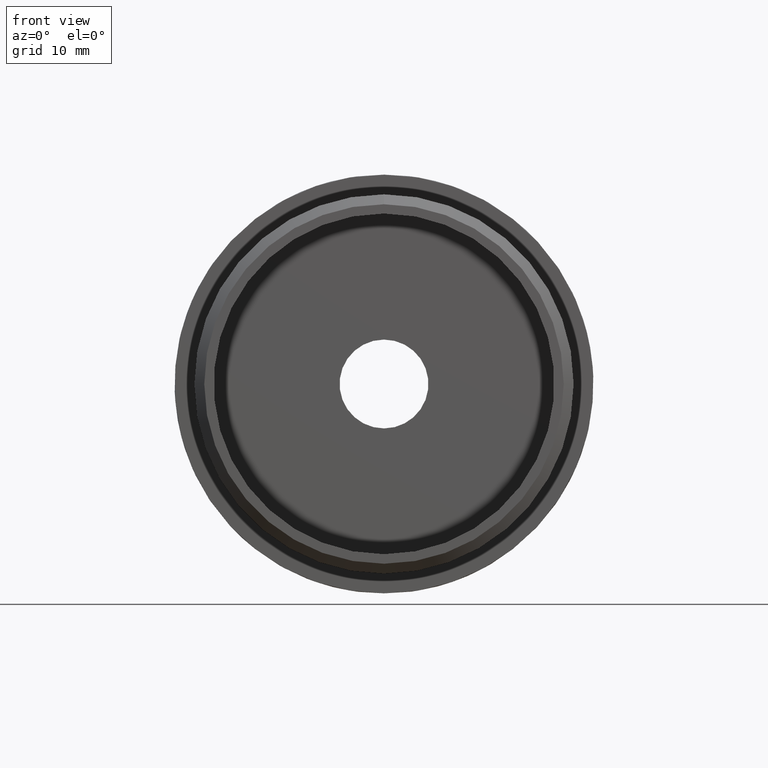
[diagram: clean part render]
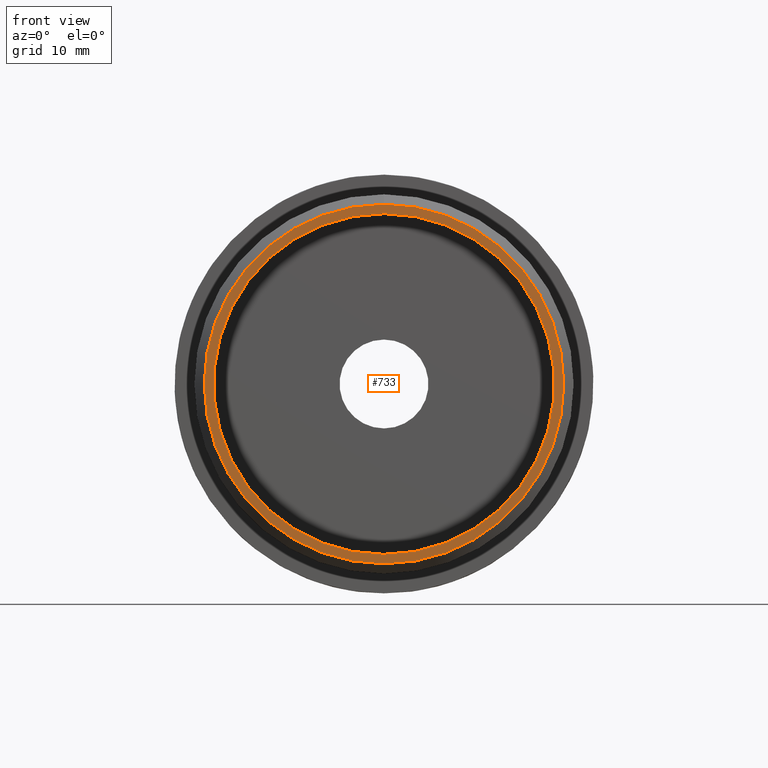
[diagram: same view with one face highlighted and labeled with its STEP entity id]
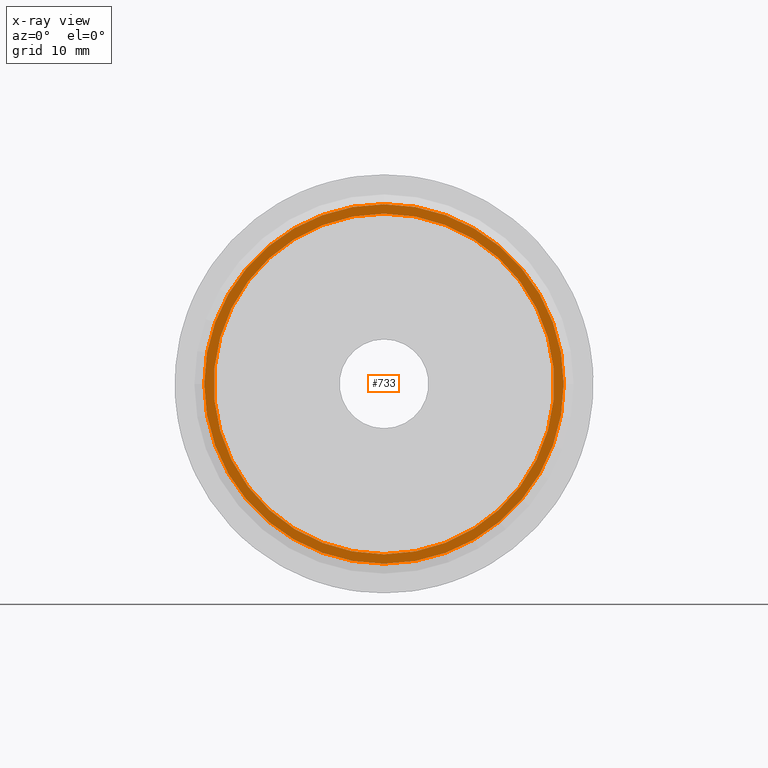
[diagram: x-ray of the same camera — body ghosted, the highlighted face saturated]
A machine part, front view. The second image highlights one B-rep face of the part: STEP entity #733.
The next image is the same camera in x-ray: the body ghosted, the highlighted face saturated — about 0% of this face is hidden behind the body in this view.
In plain terms, the highlighted planar face has unit normal (0, -1, 0).
Its self-contained STEP definition (entity closure, byte-faithful):
#30 = EDGE_CURVE ( 'NONE', #7629, #7432, #7909, .T. ) ;
#618 = VERTEX_POINT ( 'NONE', #4966 ) ;
#733 = ADVANCED_FACE ( 'NONE', ( #6312, #3821 ), #4559, .T. ) ;
#1213 = EDGE_CURVE ( 'NONE', #7432, #7629, #10839, .T. ) ;
#1284 = CARTESIAN_POINT ( 'NONE',  ( 0.0000000000000000000, -28.99999999999999600, 0.0000000000000000000 ) ) ;
#1379 = AXIS2_PLACEMENT_3D ( 'NONE', #4397, #10941, #5352 ) ;
#2038 = ORIENTED_EDGE ( 'NONE', *, *, #30, .T. ) ;
#2212 = DIRECTION ( 'NONE',  ( 0.0000000000000000000, 0.0000000000000000000, -1.000000000000000000 ) ) ;
#2655 = CARTESIAN_POINT ( 'NONE',  ( 2.290089514405549300E-015, -28.99999999999999600, -18.19999999999998200 ) ) ;
#2749 = CIRCLE ( 'NONE', #7426, 17.24999999999999300 ) ;
#3084 = DIRECTION ( 'NONE',  ( 0.0000000000000000000, -1.000000000000000000, 0.0000000000000000000 ) ) ;
#3346 = DIRECTION ( 'NONE',  ( 0.0000000000000000000, -1.000000000000000000, 0.0000000000000000000 ) ) ;
#3821 = FACE_BOUND ( 'NONE', #9442, .T. ) ;
#4110 = ORIENTED_EDGE ( 'NONE', *, *, #1213, .T. ) ;
#4149 = CARTESIAN_POINT ( 'NONE',  ( 0.0000000000000000000, -28.99999999999999600, 0.0000000000000000000 ) ) ;
#4397 = CARTESIAN_POINT ( 'NONE',  ( 0.0000000000000000000, -28.99999999999999600, 0.0000000000000000000 ) ) ;
#4559 = PLANE ( 'NONE',  #9808 ) ;
#4966 = CARTESIAN_POINT ( 'NONE',  ( 0.0000000000000000000, -28.99999999999999600, 17.24999999999999300 ) ) ;
#5212 = AXIS2_PLACEMENT_3D ( 'NONE', #8941, #3346, #9885 ) ;
#5304 = ORIENTED_EDGE ( 'NONE', *, *, #10612, .F. ) ;
#5352 = DIRECTION ( 'NONE',  ( 0.0000000000000000000, 0.0000000000000000000, -1.000000000000000000 ) ) ;
#5414 = CIRCLE ( 'NONE', #1379, 17.24999999999999300 ) ;
#5503 = CARTESIAN_POINT ( 'NONE',  ( 0.0000000000000000000, -28.99999999999999600, 0.0000000000000000000 ) ) ;
#5902 = DIRECTION ( 'NONE',  ( 0.0000000000000000000, 0.0000000000000000000, -1.000000000000000000 ) ) ;
#5958 = ORIENTED_EDGE ( 'NONE', *, *, #9112, .F. ) ;
#6312 = FACE_OUTER_BOUND ( 'NONE', #7545, .T. ) ;
#6400 = AXIS2_PLACEMENT_3D ( 'NONE', #4149, #3084, #5902 ) ;
#6928 = VERTEX_POINT ( 'NONE', #8872 ) ;
#7374 = DIRECTION ( 'NONE',  ( 0.0000000000000000000, -1.000000000000000000, 0.0000000000000000000 ) ) ;
#7426 = AXIS2_PLACEMENT_3D ( 'NONE', #1284, #7814, #2212 ) ;
#7432 = VERTEX_POINT ( 'NONE', #2655 ) ;
#7545 = EDGE_LOOP ( 'NONE', ( #2038, #4110 ) ) ;
#7629 = VERTEX_POINT ( 'NONE', #9623 ) ;
#7814 = DIRECTION ( 'NONE',  ( 0.0000000000000000000, -1.000000000000000000, 0.0000000000000000000 ) ) ;
#7909 = CIRCLE ( 'NONE', #6400, 18.19999999999998200 ) ;
#8300 = DIRECTION ( 'NONE',  ( 0.0000000000000000000, -0.0000000000000000000, -1.000000000000000000 ) ) ;
#8872 = CARTESIAN_POINT ( 'NONE',  ( 2.112515728529183700E-015, -28.99999999999999600, -17.24999999999999300 ) ) ;
#8941 = CARTESIAN_POINT ( 'NONE',  ( 0.0000000000000000000, -28.99999999999999600, 0.0000000000000000000 ) ) ;
#9112 = EDGE_CURVE ( 'NONE', #6928, #618, #5414, .T. ) ;
#9442 = EDGE_LOOP ( 'NONE', ( #5304, #5958 ) ) ;
#9623 = CARTESIAN_POINT ( 'NONE',  ( 0.0000000000000000000, -28.99999999999999600, 18.19999999999998200 ) ) ;
#9808 = AXIS2_PLACEMENT_3D ( 'NONE', #5503, #7374, #8300 ) ;
#9885 = DIRECTION ( 'NONE',  ( 0.0000000000000000000, 0.0000000000000000000, -1.000000000000000000 ) ) ;
#10612 = EDGE_CURVE ( 'NONE', #618, #6928, #2749, .T. ) ;
#10839 = CIRCLE ( 'NONE', #5212, 18.19999999999998200 ) ;
#10941 = DIRECTION ( 'NONE',  ( 0.0000000000000000000, -1.000000000000000000, 0.0000000000000000000 ) ) ;